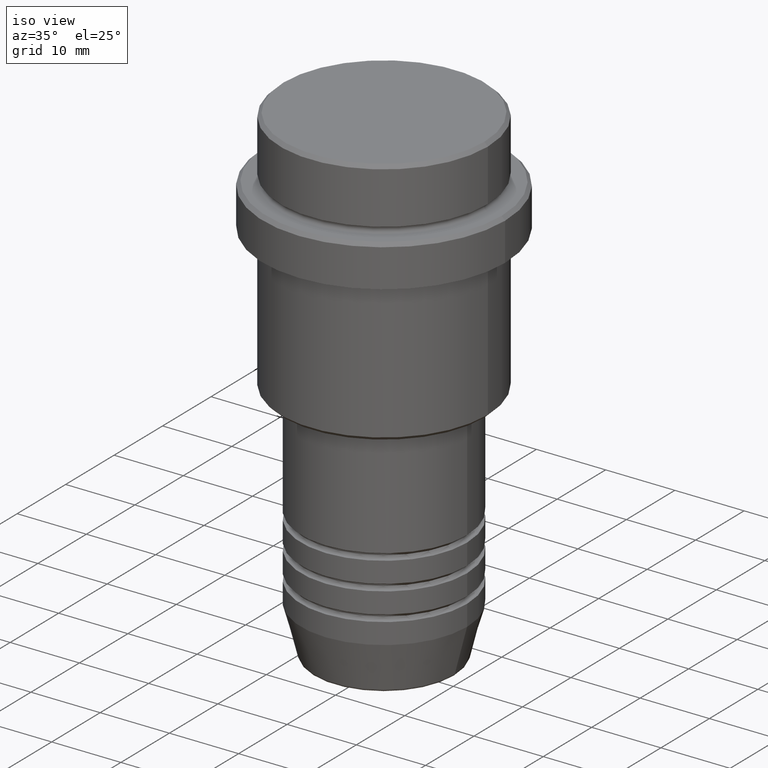
[diagram: clean part render]
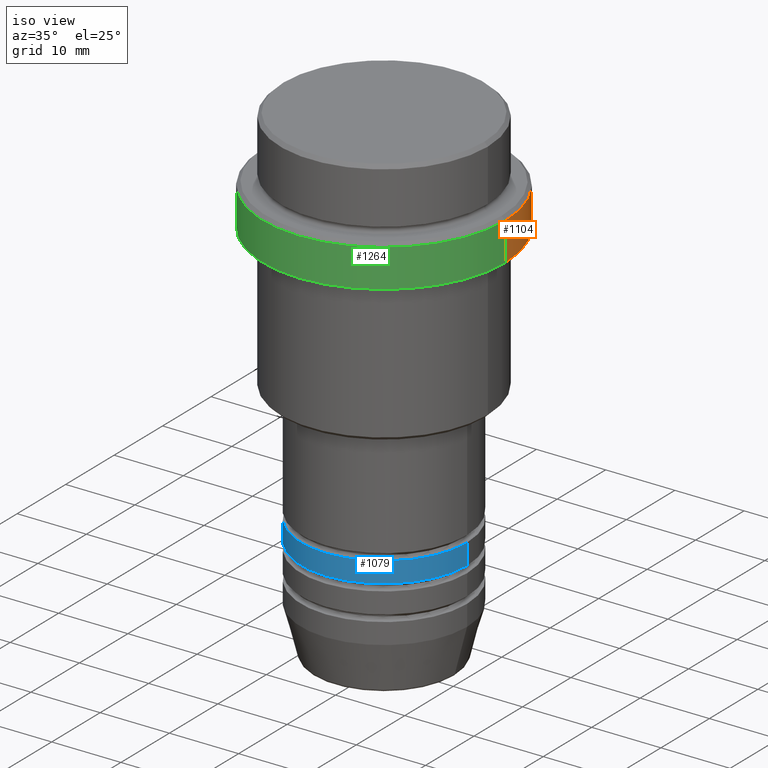
[diagram: same view with three faces highlighted in distinct colors, each labeled with its STEP entity id]
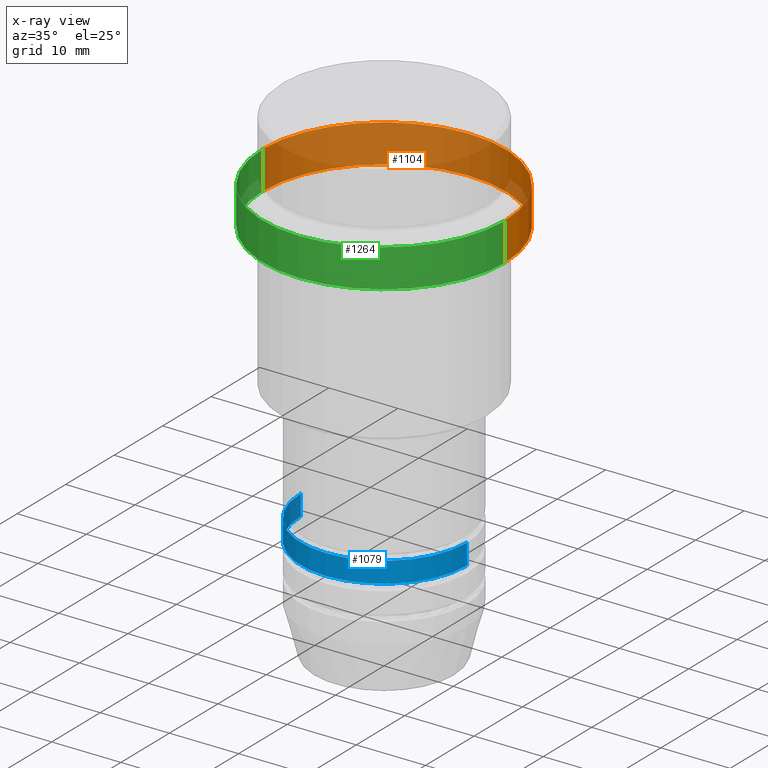
[diagram: x-ray of the same camera — body ghosted, the three highlighted faces saturated]
A machine part, iso view with three faces highlighted in distinct colors.
The next image is the same camera in x-ray (body ghosted, the three faces saturated) — at least one of them is partly hidden behind the body in this view.
Their STEP definitions:

[orange] entity #1104 — the highlighted cylindrical surface (partial cylindrical patch) has radius 17.5 mm, axis along (-0, -0, 1).
#89 = EDGE_CURVE ( 'NONE', #513, #502, #116, .T. ) ;
#95 = AXIS2_PLACEMENT_3D ( 'NONE', #140, #823, #470 ) ;
#112 = FACE_OUTER_BOUND ( 'NONE', #227, .T. ) ;
#116 = CIRCLE ( 'NONE', #916, 17.50000000000000000 ) ;
#140 = CARTESIAN_POINT ( 'NONE',  ( 0.000000000000000000, 0.000000000000000000, -15.00000000000000000 ) ) ;
#149 = CARTESIAN_POINT ( 'NONE',  ( 0.000000000000000000, 0.000000000000000000, -9.500000000000021316 ) ) ;
#169 = ORIENTED_EDGE ( 'NONE', *, *, #774, .T. ) ;
#227 = EDGE_LOOP ( 'NONE', ( #582, #169, #1108, #1389 ) ) ;
#275 = CARTESIAN_POINT ( 'NONE',  ( 17.50000000000000000, 0.000000000000000000, -9.500000000000021316 ) ) ;
#325 = CIRCLE ( 'NONE', #95, 17.50000000000000000 ) ;
#328 = EDGE_CURVE ( 'NONE', #891, #502, #438, .T. ) ;
#438 = LINE ( 'NONE', #559, #917 ) ;
#445 = DIRECTION ( 'NONE',  ( -0.000000000000000000, -0.000000000000000000, 1.000000000000000000 ) ) ;
#470 = DIRECTION ( 'NONE',  ( 1.000000000000000000, 0.000000000000000000, 0.000000000000000000 ) ) ;
#500 = VECTOR ( 'NONE', #712, 1000.000000000000000 ) ;
#501 = AXIS2_PLACEMENT_3D ( 'NONE', #661, #1189, #1062 ) ;
#502 = VERTEX_POINT ( 'NONE', #275 ) ;
#513 = VERTEX_POINT ( 'NONE', #705 ) ;
#559 = CARTESIAN_POINT ( 'NONE',  ( 17.50000000000000000, 0.000000000000000000, 0.000000000000000000 ) ) ;
#582 = ORIENTED_EDGE ( 'NONE', *, *, #872, .T. ) ;
#651 = CYLINDRICAL_SURFACE ( 'NONE', #501, 17.50000000000000000 ) ;
#661 = CARTESIAN_POINT ( 'NONE',  ( 0.000000000000000000, 0.000000000000000000, 0.000000000000000000 ) ) ;
#705 = CARTESIAN_POINT ( 'NONE',  ( -17.50000000000000000, 2.143131898507868248E-15, -9.500000000000021316 ) ) ;
#712 = DIRECTION ( 'NONE',  ( -0.000000000000000000, -0.000000000000000000, 1.000000000000000000 ) ) ;
#774 = EDGE_CURVE ( 'NONE', #1291, #513, #1015, .T. ) ;
#823 = DIRECTION ( 'NONE',  ( -0.000000000000000000, -0.000000000000000000, 1.000000000000000000 ) ) ;
#872 = EDGE_CURVE ( 'NONE', #891, #1291, #325, .T. ) ;
#891 = VERTEX_POINT ( 'NONE', #1255 ) ;
#916 = AXIS2_PLACEMENT_3D ( 'NONE', #149, #1257, #1356 ) ;
#917 = VECTOR ( 'NONE', #445, 1000.000000000000000 ) ;
#1015 = LINE ( 'NONE', #1348, #500 ) ;
#1020 = CARTESIAN_POINT ( 'NONE',  ( -17.50000000000000000, 2.143131898507868248E-15, -15.00000000000000000 ) ) ;
#1062 = DIRECTION ( 'NONE',  ( 1.000000000000000000, 0.000000000000000000, 0.000000000000000000 ) ) ;
#1104 = ADVANCED_FACE ( 'NONE', ( #112 ), #651, .T. ) ;
#1108 = ORIENTED_EDGE ( 'NONE', *, *, #89, .T. ) ;
#1189 = DIRECTION ( 'NONE',  ( -0.000000000000000000, -0.000000000000000000, 1.000000000000000000 ) ) ;
#1255 = CARTESIAN_POINT ( 'NONE',  ( 17.50000000000000000, 0.000000000000000000, -15.00000000000000000 ) ) ;
#1257 = DIRECTION ( 'NONE',  ( 0.000000000000000000, 0.000000000000000000, -1.000000000000000000 ) ) ;
#1291 = VERTEX_POINT ( 'NONE', #1020 ) ;
#1348 = CARTESIAN_POINT ( 'NONE',  ( -17.50000000000000000, 2.143131898507868248E-15, 0.000000000000000000 ) ) ;
#1356 = DIRECTION ( 'NONE',  ( 1.000000000000000000, 0.000000000000000000, 0.000000000000000000 ) ) ;
#1389 = ORIENTED_EDGE ( 'NONE', *, *, #328, .F. ) ;

[blue] entity #1079 — the highlighted cylindrical surface (partial cylindrical patch) has radius 12 mm, axis along (-0, -0, 1).
#24 = LINE ( 'NONE', #608, #526 ) ;
#74 = ORIENTED_EDGE ( 'NONE', *, *, #837, .F. ) ;
#76 = EDGE_CURVE ( 'NONE', #1391, #1367, #738, .T. ) ;
#104 = DIRECTION ( 'NONE',  ( -0.000000000000000000, -0.000000000000000000, 1.000000000000000000 ) ) ;
#124 = CARTESIAN_POINT ( 'NONE',  ( 0.000000000000000000, 0.000000000000000000, -55.99999999999989342 ) ) ;
#131 = EDGE_CURVE ( 'NONE', #363, #1281, #1130, .T. ) ;
#147 = DIRECTION ( 'NONE',  ( -0.000000000000000000, -0.000000000000000000, 1.000000000000000000 ) ) ;
#196 = CARTESIAN_POINT ( 'NONE',  ( 0.000000000000000000, 0.000000000000000000, 0.000000000000000000 ) ) ;
#273 = CARTESIAN_POINT ( 'NONE',  ( -12.00000000000000000, 1.469576158976823947E-15, -55.99999999999989342 ) ) ;
#355 = DIRECTION ( 'NONE',  ( -0.000000000000000000, -0.000000000000000000, 1.000000000000000000 ) ) ;
#363 = VERTEX_POINT ( 'NONE', #1323 ) ;
#510 = DIRECTION ( 'NONE',  ( 1.000000000000000000, 0.000000000000000000, 0.000000000000000000 ) ) ;
#526 = VECTOR ( 'NONE', #147, 1000.000000000000000 ) ;
#608 = CARTESIAN_POINT ( 'NONE',  ( -12.00000000000000000, 1.469576158976823947E-15, 0.000000000000000000 ) ) ;
#674 = AXIS2_PLACEMENT_3D ( 'NONE', #776, #1228, #1199 ) ;
#738 = CIRCLE ( 'NONE', #1087, 12.00000000000000000 ) ;
#744 = VECTOR ( 'NONE', #104, 1000.000000000000000 ) ;
#758 = CARTESIAN_POINT ( 'NONE',  ( 12.00000000000000000, 0.000000000000000000, 0.000000000000000000 ) ) ;
#776 = CARTESIAN_POINT ( 'NONE',  ( 0.000000000000000000, 0.000000000000000000, -52.99999999999988631 ) ) ;
#837 = EDGE_CURVE ( 'NONE', #1391, #363, #24, .T. ) ;
#861 = DIRECTION ( 'NONE',  ( 1.000000000000000000, 0.000000000000000000, 0.000000000000000000 ) ) ;
#866 = FACE_OUTER_BOUND ( 'NONE', #1259, .T. ) ;
#998 = ORIENTED_EDGE ( 'NONE', *, *, #76, .T. ) ;
#1034 = ORIENTED_EDGE ( 'NONE', *, *, #131, .F. ) ;
#1079 = ADVANCED_FACE ( 'NONE', ( #866 ), #1414, .T. ) ;
#1087 = AXIS2_PLACEMENT_3D ( 'NONE', #124, #355, #510 ) ;
#1098 = EDGE_CURVE ( 'NONE', #1367, #1281, #1292, .T. ) ;
#1100 = ORIENTED_EDGE ( 'NONE', *, *, #1098, .T. ) ;
#1130 = CIRCLE ( 'NONE', #674, 12.00000000000000000 ) ;
#1199 = DIRECTION ( 'NONE',  ( 1.000000000000000000, 0.000000000000000000, 0.000000000000000000 ) ) ;
#1227 = CARTESIAN_POINT ( 'NONE',  ( 12.00000000000000000, 0.000000000000000000, -52.99999999999988631 ) ) ;
#1228 = DIRECTION ( 'NONE',  ( -0.000000000000000000, -0.000000000000000000, 1.000000000000000000 ) ) ;
#1259 = EDGE_LOOP ( 'NONE', ( #74, #998, #1100, #1034 ) ) ;
#1262 = CARTESIAN_POINT ( 'NONE',  ( 12.00000000000000000, 0.000000000000000000, -55.99999999999989342 ) ) ;
#1281 = VERTEX_POINT ( 'NONE', #1227 ) ;
#1292 = LINE ( 'NONE', #758, #744 ) ;
#1304 = DIRECTION ( 'NONE',  ( -0.000000000000000000, -0.000000000000000000, 1.000000000000000000 ) ) ;
#1323 = CARTESIAN_POINT ( 'NONE',  ( -12.00000000000000000, 1.469576158976823947E-15, -52.99999999999988631 ) ) ;
#1352 = AXIS2_PLACEMENT_3D ( 'NONE', #196, #1304, #861 ) ;
#1367 = VERTEX_POINT ( 'NONE', #1262 ) ;
#1391 = VERTEX_POINT ( 'NONE', #273 ) ;
#1414 = CYLINDRICAL_SURFACE ( 'NONE', #1352, 12.00000000000000000 ) ;

[green] entity #1264 — the highlighted cylindrical surface (partial cylindrical patch) has radius 17.5 mm, axis along (-0, -0, 1).
#27 = DIRECTION ( 'NONE',  ( -0.000000000000000000, -0.000000000000000000, 1.000000000000000000 ) ) ;
#136 = CIRCLE ( 'NONE', #1417, 17.50000000000000000 ) ;
#165 = DIRECTION ( 'NONE',  ( 0.000000000000000000, 0.000000000000000000, -1.000000000000000000 ) ) ;
#214 = EDGE_CURVE ( 'NONE', #1291, #891, #136, .T. ) ;
#275 = CARTESIAN_POINT ( 'NONE',  ( 17.50000000000000000, 0.000000000000000000, -9.500000000000021316 ) ) ;
#328 = EDGE_CURVE ( 'NONE', #891, #502, #438, .T. ) ;
#356 = DIRECTION ( 'NONE',  ( -0.000000000000000000, -0.000000000000000000, 1.000000000000000000 ) ) ;
#360 = CYLINDRICAL_SURFACE ( 'NONE', #1139, 17.50000000000000000 ) ;
#362 = CARTESIAN_POINT ( 'NONE',  ( 0.000000000000000000, 0.000000000000000000, -15.00000000000000000 ) ) ;
#396 = ORIENTED_EDGE ( 'NONE', *, *, #328, .T. ) ;
#399 = AXIS2_PLACEMENT_3D ( 'NONE', #413, #165, #953 ) ;
#413 = CARTESIAN_POINT ( 'NONE',  ( 0.000000000000000000, 0.000000000000000000, -9.500000000000021316 ) ) ;
#415 = EDGE_CURVE ( 'NONE', #502, #513, #1002, .T. ) ;
#438 = LINE ( 'NONE', #559, #917 ) ;
#445 = DIRECTION ( 'NONE',  ( -0.000000000000000000, -0.000000000000000000, 1.000000000000000000 ) ) ;
#500 = VECTOR ( 'NONE', #712, 1000.000000000000000 ) ;
#502 = VERTEX_POINT ( 'NONE', #275 ) ;
#513 = VERTEX_POINT ( 'NONE', #705 ) ;
#559 = CARTESIAN_POINT ( 'NONE',  ( 17.50000000000000000, 0.000000000000000000, 0.000000000000000000 ) ) ;
#691 = CARTESIAN_POINT ( 'NONE',  ( 0.000000000000000000, 0.000000000000000000, 0.000000000000000000 ) ) ;
#705 = CARTESIAN_POINT ( 'NONE',  ( -17.50000000000000000, 2.143131898507868248E-15, -9.500000000000021316 ) ) ;
#712 = DIRECTION ( 'NONE',  ( -0.000000000000000000, -0.000000000000000000, 1.000000000000000000 ) ) ;
#728 = ORIENTED_EDGE ( 'NONE', *, *, #774, .F. ) ;
#774 = EDGE_CURVE ( 'NONE', #1291, #513, #1015, .T. ) ;
#891 = VERTEX_POINT ( 'NONE', #1255 ) ;
#917 = VECTOR ( 'NONE', #445, 1000.000000000000000 ) ;
#953 = DIRECTION ( 'NONE',  ( 1.000000000000000000, 0.000000000000000000, 0.000000000000000000 ) ) ;
#1002 = CIRCLE ( 'NONE', #399, 17.50000000000000000 ) ;
#1015 = LINE ( 'NONE', #1348, #500 ) ;
#1020 = CARTESIAN_POINT ( 'NONE',  ( -17.50000000000000000, 2.143131898507868248E-15, -15.00000000000000000 ) ) ;
#1085 = ORIENTED_EDGE ( 'NONE', *, *, #415, .T. ) ;
#1121 = DIRECTION ( 'NONE',  ( 1.000000000000000000, 0.000000000000000000, 0.000000000000000000 ) ) ;
#1139 = AXIS2_PLACEMENT_3D ( 'NONE', #691, #27, #1208 ) ;
#1156 = EDGE_LOOP ( 'NONE', ( #728, #1319, #396, #1085 ) ) ;
#1208 = DIRECTION ( 'NONE',  ( 1.000000000000000000, 0.000000000000000000, 0.000000000000000000 ) ) ;
#1242 = FACE_OUTER_BOUND ( 'NONE', #1156, .T. ) ;
#1255 = CARTESIAN_POINT ( 'NONE',  ( 17.50000000000000000, 0.000000000000000000, -15.00000000000000000 ) ) ;
#1264 = ADVANCED_FACE ( 'NONE', ( #1242 ), #360, .T. ) ;
#1291 = VERTEX_POINT ( 'NONE', #1020 ) ;
#1319 = ORIENTED_EDGE ( 'NONE', *, *, #214, .T. ) ;
#1348 = CARTESIAN_POINT ( 'NONE',  ( -17.50000000000000000, 2.143131898507868248E-15, 0.000000000000000000 ) ) ;
#1417 = AXIS2_PLACEMENT_3D ( 'NONE', #362, #356, #1121 ) ;